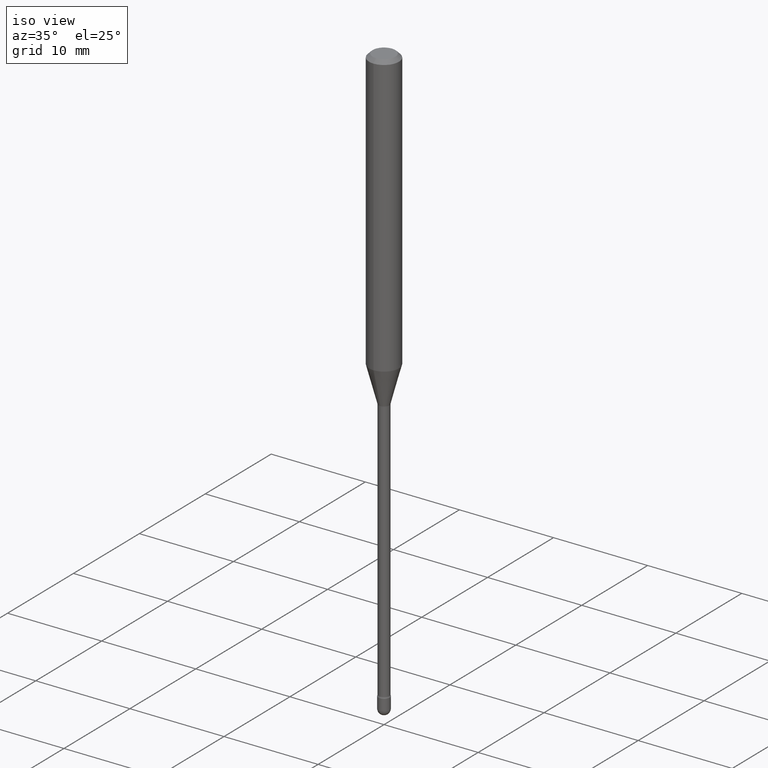
[diagram: clean part render]
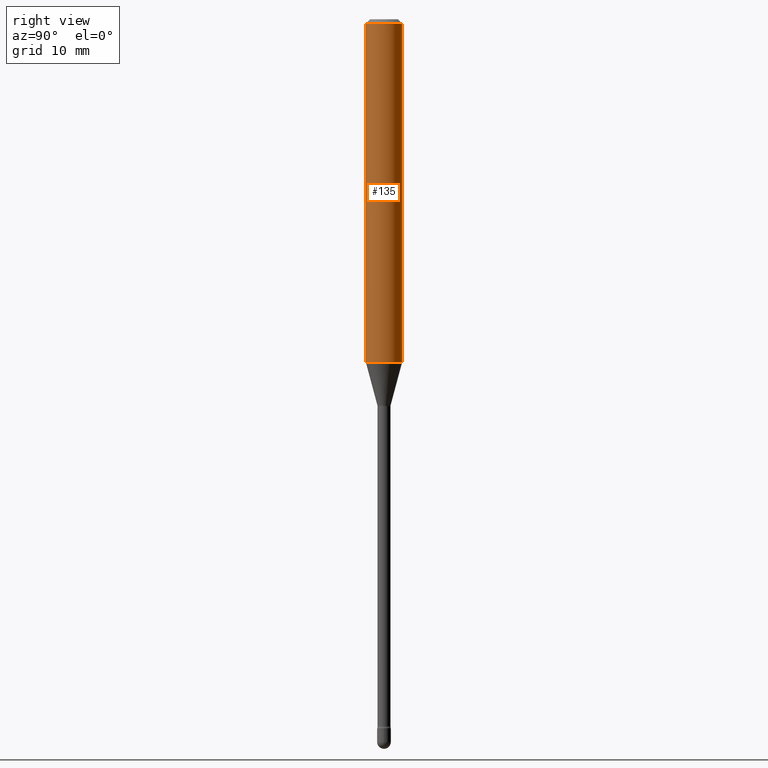
[diagram: tour spotlight — one face highlighted and labeled with its STEP entity id]
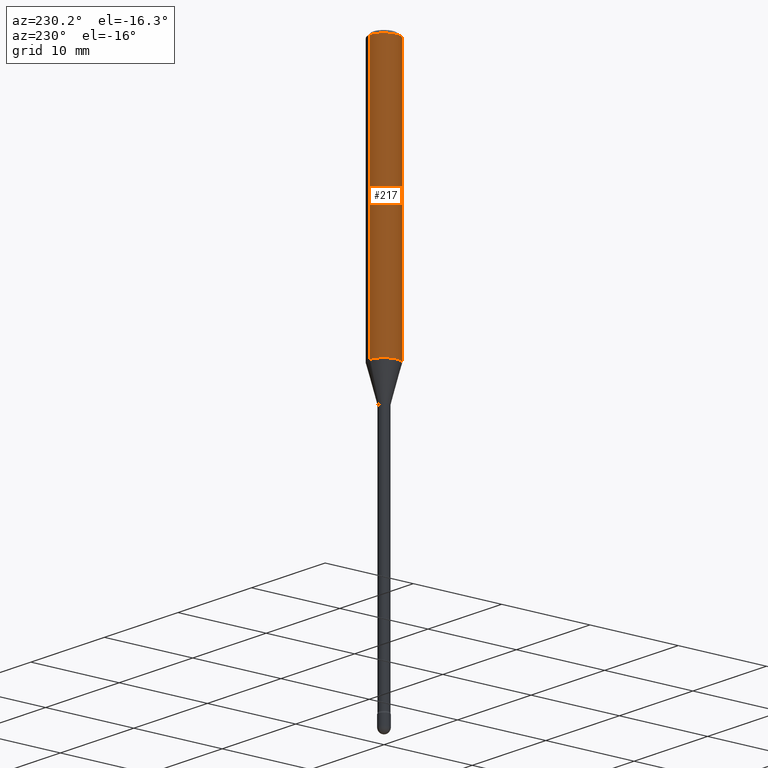
[diagram: tour spotlight — one face highlighted and labeled with its STEP entity id]
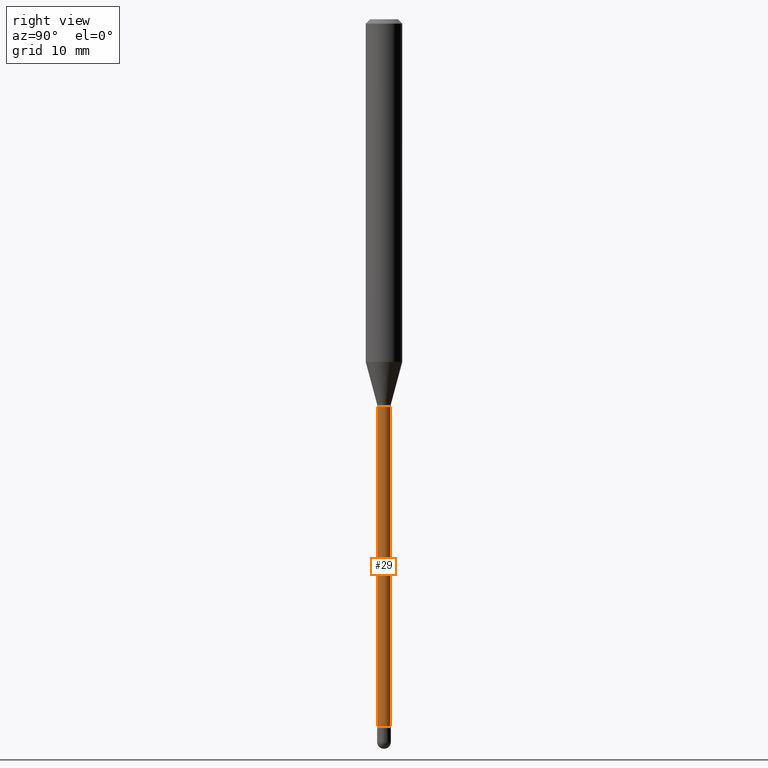
[diagram: tour spotlight — one face highlighted and labeled with its STEP entity id]
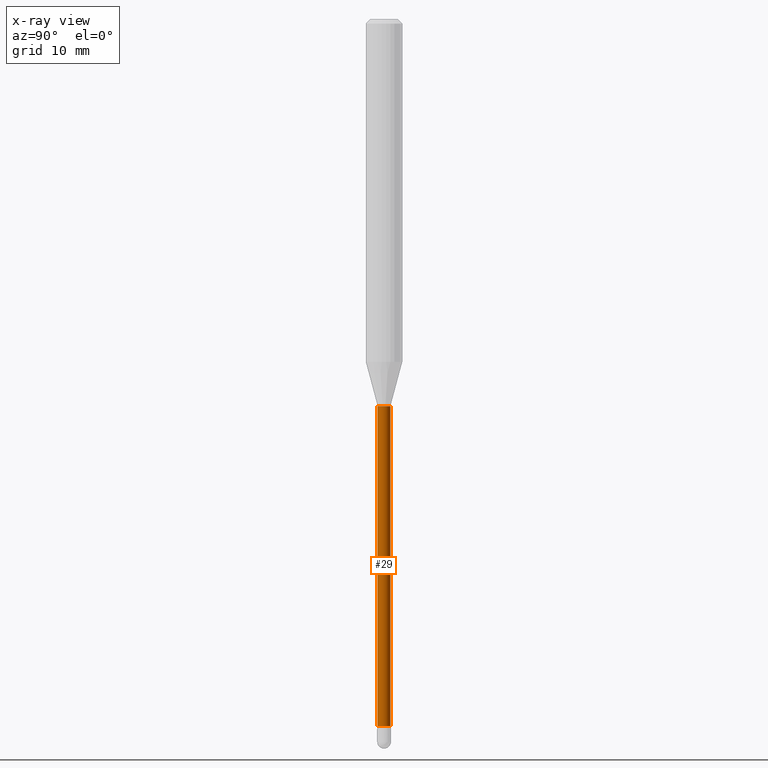
[diagram: x-ray of the same camera — body ghosted, this tour face saturated]
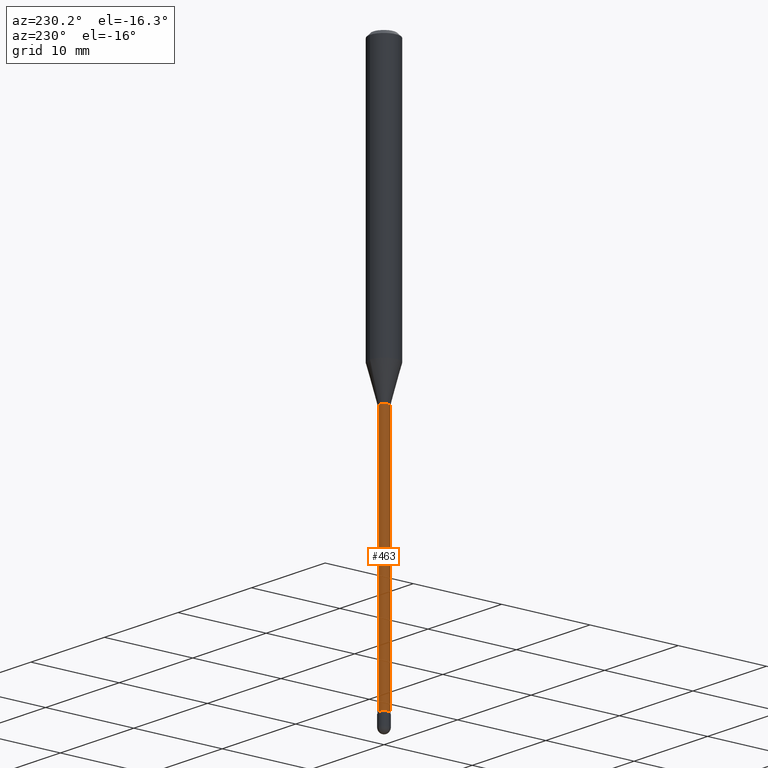
[diagram: tour spotlight — one face highlighted and labeled with its STEP entity id]
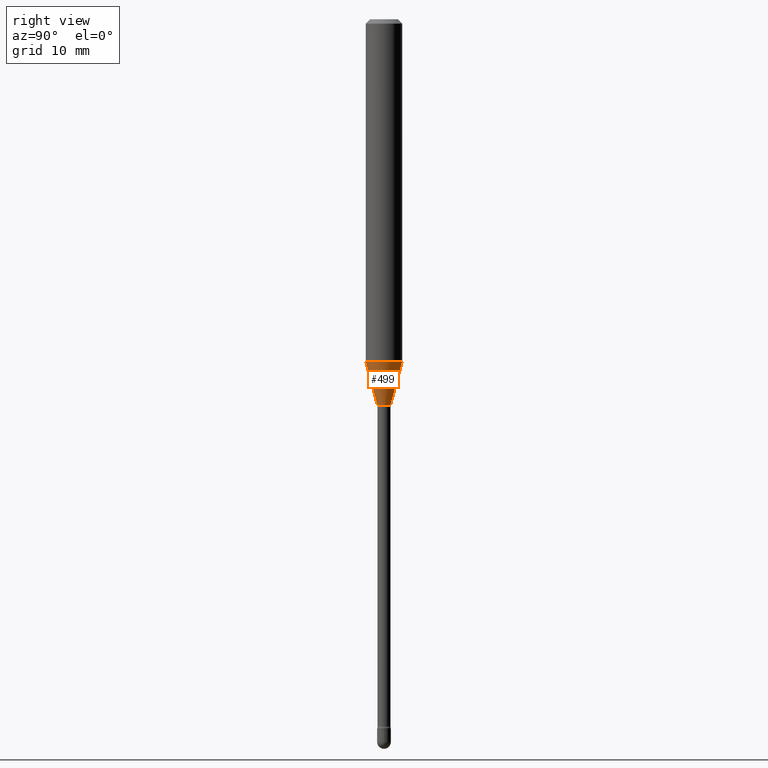
[diagram: tour spotlight — one face highlighted and labeled with its STEP entity id]
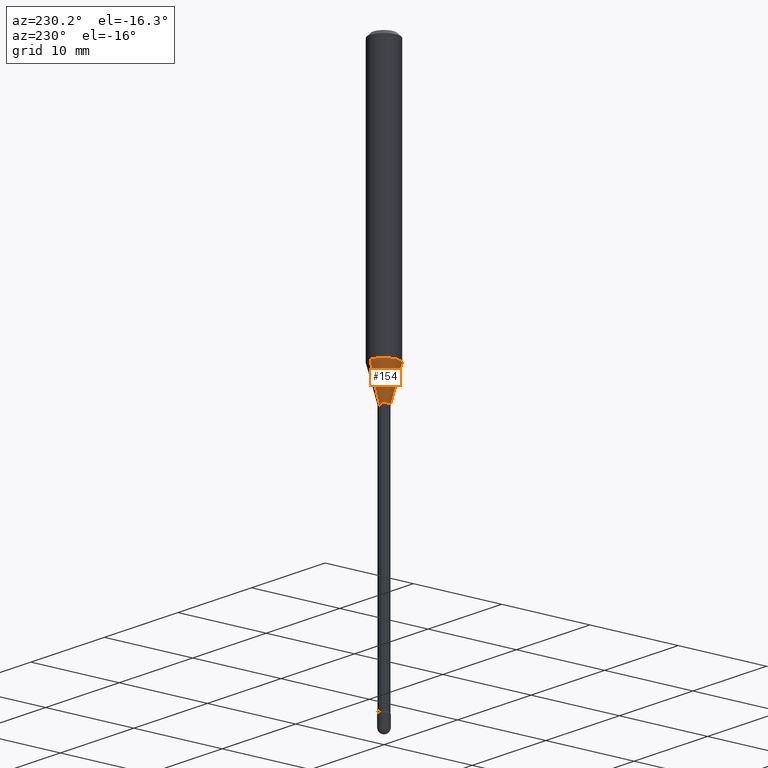
[diagram: tour spotlight — one face highlighted and labeled with its STEP entity id]
A machine part: a face-by-face anatomy tour. The part has 19 B-rep faces; the first image is the clean iso view, then the 6 largest visible faces are spotlighted one at a time (largest first), each with its STEP entity span.

Face 1 — right view, entity #135. In plain terms, the highlighted cylindrical surface (edge-blend (fillet) strip) has radius 1.5875 mm, axis along (-0, 0, 1).
Definition (entity closure, byte-faithful):
#48 = ORIENTED_EDGE ( 'NONE', *, *, #197, .T. ) ;
#65 = VERTEX_POINT ( 'NONE', #503 ) ;
#88 = AXIS2_PLACEMENT_3D ( 'NONE', #128, #388, #483 ) ;
#113 = DIRECTION ( 'NONE',  ( -2.445458212456957479E-29, 3.491496509664856658E-15, 1.000000000000000000 ) ) ;
#121 = CYLINDRICAL_SURFACE ( 'NONE', #88, 0.06250000000000000000 ) ;
#128 = CARTESIAN_POINT ( 'NONE',  ( -1.169113584055446105E-44, 1.669184350826100908E-30, 4.780733988912460139E-16 ) ) ;
#130 = DIRECTION ( 'NONE',  ( -6.982962677686265922E-15, -1.000000000000000000, 3.483106191921935554E-15 ) ) ;
#131 = FACE_OUTER_BOUND ( 'NONE', #528, .T. ) ;
#135 = ADVANCED_FACE ( 'NONE', ( #131 ), #121, .T. ) ;
#161 = EDGE_CURVE ( 'NONE', #416, #497, #410, .T. ) ;
#163 = AXIS2_PLACEMENT_3D ( 'NONE', #339, #297, #565 ) ;
#197 = EDGE_CURVE ( 'NONE', #65, #497, #202, .T. ) ;
#202 = LINE ( 'NONE', #283, #247 ) ;
#213 = DIRECTION ( 'NONE',  ( -2.445458212456957479E-29, 3.491496509664856658E-15, 1.000000000000000000 ) ) ;
#247 = VECTOR ( 'NONE', #113, 39.37007874015748143 ) ;
#252 = LINE ( 'NONE', #341, #376 ) ;
#254 = CARTESIAN_POINT ( 'NONE',  ( -4.364351673553912750E-16, -0.06250000000000005551, -0.01499999999999986587 ) ) ;
#283 = CARTESIAN_POINT ( 'NONE',  ( 4.440892098500625669E-16, 0.06250000000000000000, 2.598548670371925468E-16 ) ) ;
#293 = CARTESIAN_POINT ( 'NONE',  ( -4.364351673553631225E-16, -0.06250000000000412170, -1.174225147374217793 ) ) ;
#297 = DIRECTION ( 'NONE',  ( -2.445458212456957199E-29, 3.491496509664856263E-15, 1.000000000000000000 ) ) ;
#330 = ORIENTED_EDGE ( 'NONE', *, *, #437, .T. ) ;
#339 = CARTESIAN_POINT ( 'NONE',  ( 2.871518529919762182E-29, -4.099803003617783492E-15, -1.174225147374218015 ) ) ;
#341 = CARTESIAN_POINT ( 'NONE',  ( -4.364351673553916201E-16, -0.06250000000000000000, 6.962919307452995797E-16 ) ) ;
#363 = EDGE_CURVE ( 'NONE', #489, #416, #252, .T. ) ;
#376 = VECTOR ( 'NONE', #213, 39.37007874015748143 ) ;
#388 = DIRECTION ( 'NONE',  ( -2.445458212456957199E-29, 3.491496509664856263E-15, 1.000000000000000000 ) ) ;
#410 = CIRCLE ( 'NONE', #492, 0.06250000000000000000 ) ;
#416 = VERTEX_POINT ( 'NONE', #254 ) ;
#437 = EDGE_CURVE ( 'NONE', #489, #65, #518, .T. ) ;
#483 = DIRECTION ( 'NONE',  ( -6.982962677686265922E-15, -1.000000000000000000, 3.491496509664855869E-15 ) ) ;
#489 = VERTEX_POINT ( 'NONE', #293 ) ;
#492 = AXIS2_PLACEMENT_3D ( 'NONE', #539, #560, #130 ) ;
#496 = ORIENTED_EDGE ( 'NONE', *, *, #363, .F. ) ;
#497 = VERTEX_POINT ( 'NONE', #566 ) ;
#503 = CARTESIAN_POINT ( 'NONE',  ( 4.440892098500910152E-16, 0.06249999999999587830, -1.174225147374218237 ) ) ;
#518 = CIRCLE ( 'NONE', #163, 0.06250000000000000000 ) ;
#528 = EDGE_LOOP ( 'NONE', ( #330, #48, #540, #496 ) ) ;
#539 = CARTESIAN_POINT ( 'NONE',  ( 3.668187318685455644E-31, -5.237244764497312646E-17, -0.01500000000000008271 ) ) ;
#540 = ORIENTED_EDGE ( 'NONE', *, *, #161, .F. ) ;
#560 = DIRECTION ( 'NONE',  ( -2.445458212456957199E-29, 3.491496509664856263E-15, 1.000000000000000000 ) ) ;
#565 = DIRECTION ( 'NONE',  ( -6.982962677686265922E-15, -1.000000000000000000, 4.370956789862821150E-15 ) ) ;
#566 = CARTESIAN_POINT ( 'NONE',  ( 4.440892098500914096E-16, 0.06249999999999995143, -0.01500000000000030129 ) ) ;

Face 2 — auxiliary view, entity #217. In plain terms, the highlighted cylindrical surface (edge-blend (fillet) strip) has radius 1.5875 mm, axis along (-0, 0, 1).
Definition (entity closure, byte-faithful):
#12 = ORIENTED_EDGE ( 'NONE', *, *, #89, .T. ) ;
#19 = CYLINDRICAL_SURFACE ( 'NONE', #317, 0.06250000000000000000 ) ;
#21 = CARTESIAN_POINT ( 'NONE',  ( 3.668187318685455644E-31, -5.237244764497312646E-17, -0.01500000000000008271 ) ) ;
#65 = VERTEX_POINT ( 'NONE', #503 ) ;
#73 = CARTESIAN_POINT ( 'NONE',  ( -1.169113584055446105E-44, 1.669184350826100908E-30, 4.780733988912460139E-16 ) ) ;
#77 = ORIENTED_EDGE ( 'NONE', *, *, #363, .T. ) ;
#89 = EDGE_CURVE ( 'NONE', #65, #489, #326, .T. ) ;
#96 = ORIENTED_EDGE ( 'NONE', *, *, #197, .F. ) ;
#105 = DIRECTION ( 'NONE',  ( -6.982962677686265922E-15, -1.000000000000000000, 3.483106191921935554E-15 ) ) ;
#113 = DIRECTION ( 'NONE',  ( -2.445458212456957479E-29, 3.491496509664856658E-15, 1.000000000000000000 ) ) ;
#117 = DIRECTION ( 'NONE',  ( -2.445458212456957199E-29, 3.491496509664856263E-15, 1.000000000000000000 ) ) ;
#155 = CIRCLE ( 'NONE', #464, 0.06250000000000000000 ) ;
#188 = EDGE_CURVE ( 'NONE', #497, #416, #155, .T. ) ;
#197 = EDGE_CURVE ( 'NONE', #65, #497, #202, .T. ) ;
#202 = LINE ( 'NONE', #283, #247 ) ;
#205 = AXIS2_PLACEMENT_3D ( 'NONE', #329, #427, #233 ) ;
#213 = DIRECTION ( 'NONE',  ( -2.445458212456957479E-29, 3.491496509664856658E-15, 1.000000000000000000 ) ) ;
#217 = ADVANCED_FACE ( 'NONE', ( #275 ), #19, .T. ) ;
#233 = DIRECTION ( 'NONE',  ( -6.982962677686265922E-15, -1.000000000000000000, 4.370956789862821150E-15 ) ) ;
#247 = VECTOR ( 'NONE', #113, 39.37007874015748143 ) ;
#252 = LINE ( 'NONE', #341, #376 ) ;
#254 = CARTESIAN_POINT ( 'NONE',  ( -4.364351673553912750E-16, -0.06250000000000005551, -0.01499999999999986587 ) ) ;
#272 = EDGE_LOOP ( 'NONE', ( #96, #12, #77, #452 ) ) ;
#275 = FACE_OUTER_BOUND ( 'NONE', #272, .T. ) ;
#283 = CARTESIAN_POINT ( 'NONE',  ( 4.440892098500625669E-16, 0.06250000000000000000, 2.598548670371925468E-16 ) ) ;
#293 = CARTESIAN_POINT ( 'NONE',  ( -4.364351673553631225E-16, -0.06250000000000412170, -1.174225147374217793 ) ) ;
#317 = AXIS2_PLACEMENT_3D ( 'NONE', #73, #462, #460 ) ;
#326 = CIRCLE ( 'NONE', #205, 0.06250000000000000000 ) ;
#329 = CARTESIAN_POINT ( 'NONE',  ( 2.871518529919762182E-29, -4.099803003617783492E-15, -1.174225147374218015 ) ) ;
#341 = CARTESIAN_POINT ( 'NONE',  ( -4.364351673553916201E-16, -0.06250000000000000000, 6.962919307452995797E-16 ) ) ;
#363 = EDGE_CURVE ( 'NONE', #489, #416, #252, .T. ) ;
#376 = VECTOR ( 'NONE', #213, 39.37007874015748143 ) ;
#416 = VERTEX_POINT ( 'NONE', #254 ) ;
#427 = DIRECTION ( 'NONE',  ( -2.445458212456957199E-29, 3.491496509664856263E-15, 1.000000000000000000 ) ) ;
#452 = ORIENTED_EDGE ( 'NONE', *, *, #188, .F. ) ;
#460 = DIRECTION ( 'NONE',  ( -6.982962677686265922E-15, -1.000000000000000000, 3.491496509664855869E-15 ) ) ;
#462 = DIRECTION ( 'NONE',  ( -2.445458212456957199E-29, 3.491496509664856263E-15, 1.000000000000000000 ) ) ;
#464 = AXIS2_PLACEMENT_3D ( 'NONE', #21, #117, #105 ) ;
#489 = VERTEX_POINT ( 'NONE', #293 ) ;
#497 = VERTEX_POINT ( 'NONE', #566 ) ;
#503 = CARTESIAN_POINT ( 'NONE',  ( 4.440892098500910152E-16, 0.06249999999999587830, -1.174225147374218237 ) ) ;
#566 = CARTESIAN_POINT ( 'NONE',  ( 4.440892098500914096E-16, 0.06249999999999995143, -0.01500000000000030129 ) ) ;

Face 3 — right view, entity #29. An x-ray twin of the same camera follows (body ghosted, this face saturated) — the face is partly hidden behind the body. In plain terms, the highlighted cylindrical surface (edge-blend (fillet) strip) has radius 0.5613 mm, axis along (-0, 0, 1).
Definition (entity closure, byte-faithful):
#15 = VERTEX_POINT ( 'NONE', #210 ) ;
#20 = EDGE_LOOP ( 'NONE', ( #373, #186, #183, #110 ) ) ;
#29 = ADVANCED_FACE ( 'NONE', ( #139 ), #447, .T. ) ;
#41 = DIRECTION ( 'NONE',  ( -6.982962677686266711E-15, -1.000000000000000000, 0.000000000000000000 ) ) ;
#46 = LINE ( 'NONE', #485, #191 ) ;
#47 = CARTESIAN_POINT ( 'NONE',  ( 1.570299446030417360E-16, 0.02209999999999536988, -1.326974787463811145 ) ) ;
#79 = DIRECTION ( 'NONE',  ( -2.445458212456957199E-29, 3.491496509664856263E-15, 1.000000000000000000 ) ) ;
#102 = VERTEX_POINT ( 'NONE', #47 ) ;
#110 = ORIENTED_EDGE ( 'NONE', *, *, #403, .F. ) ;
#127 = EDGE_CURVE ( 'NONE', #15, #255, #212, .T. ) ;
#139 = FACE_OUTER_BOUND ( 'NONE', #20, .T. ) ;
#162 = CARTESIAN_POINT ( 'NONE',  ( 3.245061391726702506E-29, -4.633127838843160731E-15, -1.326974787463811145 ) ) ;
#167 = DIRECTION ( 'NONE',  ( -6.982962677686265922E-15, -1.000000000000000000, 0.000000000000000000 ) ) ;
#183 = ORIENTED_EDGE ( 'NONE', *, *, #258, .F. ) ;
#186 = ORIENTED_EDGE ( 'NONE', *, *, #290, .T. ) ;
#187 = CARTESIAN_POINT ( 'NONE',  ( 5.924543831024158448E-29, -8.458751820827276960E-15, -2.422672283192177645 ) ) ;
#191 = VECTOR ( 'NONE', #557, 39.37007874015748143 ) ;
#204 = LINE ( 'NONE', #372, #237 ) ;
#210 = CARTESIAN_POINT ( 'NONE',  ( -1.543234751768080125E-16, -0.02210000000000856765, -2.422672283192177645 ) ) ;
#212 = CIRCLE ( 'NONE', #445, 0.02210000000000010914 ) ;
#237 = VECTOR ( 'NONE', #550, 39.37007874015748143 ) ;
#255 = VERTEX_POINT ( 'NONE', #553 ) ;
#258 = EDGE_CURVE ( 'NONE', #490, #102, #365, .T. ) ;
#290 = EDGE_CURVE ( 'NONE', #255, #102, #204, .T. ) ;
#308 = AXIS2_PLACEMENT_3D ( 'NONE', #162, #79, #167 ) ;
#318 = DIRECTION ( 'NONE',  ( -6.982962677686265922E-15, -1.000000000000000000, 3.491496509664854291E-15 ) ) ;
#338 = CARTESIAN_POINT ( 'NONE',  ( -1.543234751768340203E-16, -0.02210000000000463330, -1.326974787463811145 ) ) ;
#365 = CIRCLE ( 'NONE', #308, 0.02210000000000000159 ) ;
#372 = CARTESIAN_POINT ( 'NONE',  ( 1.570299446029824728E-16, 0.02210000000000005363, 4.009113260276525511E-16 ) ) ;
#373 = ORIENTED_EDGE ( 'NONE', *, *, #127, .T. ) ;
#401 = CARTESIAN_POINT ( 'NONE',  ( -1.169113584055446105E-44, 1.669184350826100908E-30, 4.780733988912460139E-16 ) ) ;
#403 = EDGE_CURVE ( 'NONE', #15, #490, #46, .T. ) ;
#445 = AXIS2_PLACEMENT_3D ( 'NONE', #187, #476, #41 ) ;
#447 = CYLINDRICAL_SURFACE ( 'NONE', #561, 0.02210000000000005363 ) ;
#476 = DIRECTION ( 'NONE',  ( -2.445458212456957199E-29, 3.491496509664856263E-15, 1.000000000000000000 ) ) ;
#485 = CARTESIAN_POINT ( 'NONE',  ( -1.543234751768668566E-16, -0.02210000000000005363, 5.552354717548395753E-16 ) ) ;
#490 = VERTEX_POINT ( 'NONE', #338 ) ;
#541 = DIRECTION ( 'NONE',  ( -2.445458212456957199E-29, 3.491496509664856263E-15, 1.000000000000000000 ) ) ;
#550 = DIRECTION ( 'NONE',  ( -2.445458212456957479E-29, 3.491496509664856658E-15, 1.000000000000000000 ) ) ;
#553 = CARTESIAN_POINT ( 'NONE',  ( 1.620037437533626044E-16, 0.02209999999999164716, -2.422672283192177645 ) ) ;
#557 = DIRECTION ( 'NONE',  ( -2.445458212456957479E-29, 3.491496509664856658E-15, 1.000000000000000000 ) ) ;
#561 = AXIS2_PLACEMENT_3D ( 'NONE', #401, #541, #318 ) ;

Face 4 — auxiliary view, entity #463. In plain terms, the highlighted cylindrical surface (edge-blend (fillet) strip) has radius 0.5613 mm, axis along (-0, 0, 1).
Definition (entity closure, byte-faithful):
#2 = CARTESIAN_POINT ( 'NONE',  ( -1.169113584055446105E-44, 1.669184350826100908E-30, 4.780733988912460139E-16 ) ) ;
#15 = VERTEX_POINT ( 'NONE', #210 ) ;
#33 = AXIS2_PLACEMENT_3D ( 'NONE', #209, #122, #390 ) ;
#37 = DIRECTION ( 'NONE',  ( -6.982962677686265922E-15, -1.000000000000000000, 3.491496509664854291E-15 ) ) ;
#46 = LINE ( 'NONE', #485, #191 ) ;
#47 = CARTESIAN_POINT ( 'NONE',  ( 1.570299446030417360E-16, 0.02209999999999536988, -1.326974787463811145 ) ) ;
#102 = VERTEX_POINT ( 'NONE', #47 ) ;
#103 = EDGE_LOOP ( 'NONE', ( #261, #342, #168, #262 ) ) ;
#122 = DIRECTION ( 'NONE',  ( -2.445458212456957199E-29, 3.491496509664856263E-15, 1.000000000000000000 ) ) ;
#123 = CIRCLE ( 'NONE', #501, 0.02210000000000000159 ) ;
#168 = ORIENTED_EDGE ( 'NONE', *, *, #403, .T. ) ;
#174 = DIRECTION ( 'NONE',  ( -2.445458212456957199E-29, 3.491496509664856263E-15, 1.000000000000000000 ) ) ;
#191 = VECTOR ( 'NONE', #557, 39.37007874015748143 ) ;
#204 = LINE ( 'NONE', #372, #237 ) ;
#206 = CIRCLE ( 'NONE', #33, 0.02210000000000010914 ) ;
#209 = CARTESIAN_POINT ( 'NONE',  ( 5.924543831024158448E-29, -8.458751820827276960E-15, -2.422672283192177645 ) ) ;
#210 = CARTESIAN_POINT ( 'NONE',  ( -1.543234751768080125E-16, -0.02210000000000856765, -2.422672283192177645 ) ) ;
#237 = VECTOR ( 'NONE', #550, 39.37007874015748143 ) ;
#255 = VERTEX_POINT ( 'NONE', #553 ) ;
#261 = ORIENTED_EDGE ( 'NONE', *, *, #290, .F. ) ;
#262 = ORIENTED_EDGE ( 'NONE', *, *, #440, .F. ) ;
#269 = AXIS2_PLACEMENT_3D ( 'NONE', #2, #174, #37 ) ;
#290 = EDGE_CURVE ( 'NONE', #255, #102, #204, .T. ) ;
#338 = CARTESIAN_POINT ( 'NONE',  ( -1.543234751768340203E-16, -0.02210000000000463330, -1.326974787463811145 ) ) ;
#342 = ORIENTED_EDGE ( 'NONE', *, *, #469, .T. ) ;
#372 = CARTESIAN_POINT ( 'NONE',  ( 1.570299446029824728E-16, 0.02210000000000005363, 4.009113260276525511E-16 ) ) ;
#384 = DIRECTION ( 'NONE',  ( -6.982962677686265922E-15, -1.000000000000000000, 0.000000000000000000 ) ) ;
#390 = DIRECTION ( 'NONE',  ( -6.982962677686266711E-15, -1.000000000000000000, 0.000000000000000000 ) ) ;
#395 = CYLINDRICAL_SURFACE ( 'NONE', #269, 0.02210000000000005363 ) ;
#403 = EDGE_CURVE ( 'NONE', #15, #490, #46, .T. ) ;
#430 = DIRECTION ( 'NONE',  ( -2.445458212456957199E-29, 3.491496509664856263E-15, 1.000000000000000000 ) ) ;
#436 = CARTESIAN_POINT ( 'NONE',  ( 3.245061391726702506E-29, -4.633127838843160731E-15, -1.326974787463811145 ) ) ;
#440 = EDGE_CURVE ( 'NONE', #102, #490, #123, .T. ) ;
#463 = ADVANCED_FACE ( 'NONE', ( #516 ), #395, .T. ) ;
#469 = EDGE_CURVE ( 'NONE', #255, #15, #206, .T. ) ;
#485 = CARTESIAN_POINT ( 'NONE',  ( -1.543234751768668566E-16, -0.02210000000000005363, 5.552354717548395753E-16 ) ) ;
#490 = VERTEX_POINT ( 'NONE', #338 ) ;
#501 = AXIS2_PLACEMENT_3D ( 'NONE', #436, #430, #384 ) ;
#516 = FACE_OUTER_BOUND ( 'NONE', #103, .T. ) ;
#550 = DIRECTION ( 'NONE',  ( -2.445458212456957479E-29, 3.491496509664856658E-15, 1.000000000000000000 ) ) ;
#553 = CARTESIAN_POINT ( 'NONE',  ( 1.620037437533626044E-16, 0.02209999999999164716, -2.422672283192177645 ) ) ;
#557 = DIRECTION ( 'NONE',  ( -2.445458212456957479E-29, 3.491496509664856658E-15, 1.000000000000000000 ) ) ;

Face 5 — right view, entity #499. In plain terms, the highlighted conical surface has half-angle 15 deg.
Definition (entity closure, byte-faithful):
#23 = CARTESIAN_POINT ( 'NONE',  ( 3.023754139721027843E-16, 0.02261111260565936906, -1.323092501787273223 ) ) ;
#40 = DIRECTION ( 'NONE',  ( -6.982962677686265922E-15, -1.000000000000000000, 0.000000000000000000 ) ) ;
#49 = EDGE_CURVE ( 'NONE', #512, #265, #173, .T. ) ;
#65 = VERTEX_POINT ( 'NONE', #503 ) ;
#80 = VECTOR ( 'NONE', #542, 39.37007874015749564 ) ;
#116 = EDGE_LOOP ( 'NONE', ( #370, #533, #223, #280 ) ) ;
#125 = CONICAL_SURFACE ( 'NONE', #377, 0.02261111260566398690, 0.2617993877991501295 ) ;
#133 = DIRECTION ( 'NONE',  ( -2.445458212456957199E-29, 3.491496509664856263E-15, 1.000000000000000000 ) ) ;
#157 = CARTESIAN_POINT ( 'NONE',  ( -1.578925554262807327E-16, -0.02261111260566860820, -1.323092501787273223 ) ) ;
#159 = LINE ( 'NONE', #196, #448 ) ;
#163 = AXIS2_PLACEMENT_3D ( 'NONE', #339, #297, #565 ) ;
#173 = CIRCLE ( 'NONE', #180, 0.02261111260566398690 ) ;
#178 = FACE_OUTER_BOUND ( 'NONE', #116, .T. ) ;
#180 = AXIS2_PLACEMENT_3D ( 'NONE', #382, #332, #40 ) ;
#196 = CARTESIAN_POINT ( 'NONE',  ( 1.606616180941141096E-16, 0.02261111260565936906, -1.323092501787273223 ) ) ;
#219 = EDGE_CURVE ( 'NONE', #512, #489, #331, .T. ) ;
#223 = ORIENTED_EDGE ( 'NONE', *, *, #437, .F. ) ;
#265 = VERTEX_POINT ( 'NONE', #23 ) ;
#266 = CARTESIAN_POINT ( 'NONE',  ( -1.578925554262807327E-16, -0.02261111260566860820, -1.323092501787273223 ) ) ;
#271 = EDGE_CURVE ( 'NONE', #265, #65, #159, .T. ) ;
#280 = ORIENTED_EDGE ( 'NONE', *, *, #219, .F. ) ;
#293 = CARTESIAN_POINT ( 'NONE',  ( -4.364351673553631225E-16, -0.06250000000000412170, -1.174225147374217793 ) ) ;
#297 = DIRECTION ( 'NONE',  ( -2.445458212456957199E-29, 3.491496509664856263E-15, 1.000000000000000000 ) ) ;
#322 = DIRECTION ( 'NONE',  ( 1.839019923739599526E-15, 0.2588190451025248473, 0.9659258262890673130 ) ) ;
#331 = LINE ( 'NONE', #157, #80 ) ;
#332 = DIRECTION ( 'NONE',  ( -2.445458212456957199E-29, 3.491496509664856263E-15, 1.000000000000000000 ) ) ;
#339 = CARTESIAN_POINT ( 'NONE',  ( 2.871518529919762182E-29, -4.099803003617783492E-15, -1.174225147374218015 ) ) ;
#370 = ORIENTED_EDGE ( 'NONE', *, *, #49, .T. ) ;
#377 = AXIS2_PLACEMENT_3D ( 'NONE', #524, #133, #444 ) ;
#382 = CARTESIAN_POINT ( 'NONE',  ( 3.235567424335908757E-29, -4.619572851954007400E-15, -1.323092501787273223 ) ) ;
#437 = EDGE_CURVE ( 'NONE', #489, #65, #518, .T. ) ;
#444 = DIRECTION ( 'NONE',  ( -6.982962677686265922E-15, -1.000000000000000000, 0.000000000000000000 ) ) ;
#448 = VECTOR ( 'NONE', #322, 39.37007874015747433 ) ;
#489 = VERTEX_POINT ( 'NONE', #293 ) ;
#499 = ADVANCED_FACE ( 'NONE', ( #178 ), #125, .T. ) ;
#503 = CARTESIAN_POINT ( 'NONE',  ( 4.440892098500910152E-16, 0.06249999999999587830, -1.174225147374218237 ) ) ;
#512 = VERTEX_POINT ( 'NONE', #266 ) ;
#518 = CIRCLE ( 'NONE', #163, 0.06250000000000000000 ) ;
#524 = CARTESIAN_POINT ( 'NONE',  ( 3.235567424335908757E-29, -4.619572851954007400E-15, -1.323092501787273223 ) ) ;
#533 = ORIENTED_EDGE ( 'NONE', *, *, #271, .T. ) ;
#542 = DIRECTION ( 'NONE',  ( -1.807323732225328562E-15, -0.2588190451025179639, 0.9659258262890689783 ) ) ;
#565 = DIRECTION ( 'NONE',  ( -6.982962677686265922E-15, -1.000000000000000000, 4.370956789862821150E-15 ) ) ;

Face 6 — auxiliary view, entity #154. In plain terms, the highlighted conical surface has half-angle 15 deg.
Definition (entity closure, byte-faithful):
#3 = CONICAL_SURFACE ( 'NONE', #62, 0.02261111260566398690, 0.2617993877991501295 ) ;
#23 = CARTESIAN_POINT ( 'NONE',  ( 3.023754139721027843E-16, 0.02261111260565936906, -1.323092501787273223 ) ) ;
#62 = AXIS2_PLACEMENT_3D ( 'NONE', #231, #314, #270 ) ;
#65 = VERTEX_POINT ( 'NONE', #503 ) ;
#80 = VECTOR ( 'NONE', #542, 39.37007874015749564 ) ;
#86 = CARTESIAN_POINT ( 'NONE',  ( 3.235567424335908757E-29, -4.619572851954007400E-15, -1.323092501787273223 ) ) ;
#89 = EDGE_CURVE ( 'NONE', #65, #489, #326, .T. ) ;
#108 = ORIENTED_EDGE ( 'NONE', *, *, #302, .T. ) ;
#154 = ADVANCED_FACE ( 'NONE', ( #453 ), #3, .T. ) ;
#157 = CARTESIAN_POINT ( 'NONE',  ( -1.578925554262807327E-16, -0.02261111260566860820, -1.323092501787273223 ) ) ;
#159 = LINE ( 'NONE', #196, #448 ) ;
#169 = DIRECTION ( 'NONE',  ( -2.445458212456957199E-29, 3.491496509664856263E-15, 1.000000000000000000 ) ) ;
#179 = DIRECTION ( 'NONE',  ( -6.982962677686265922E-15, -1.000000000000000000, 0.000000000000000000 ) ) ;
#196 = CARTESIAN_POINT ( 'NONE',  ( 1.606616180941141096E-16, 0.02261111260565936906, -1.323092501787273223 ) ) ;
#205 = AXIS2_PLACEMENT_3D ( 'NONE', #329, #427, #233 ) ;
#215 = CIRCLE ( 'NONE', #482, 0.02261111260566398690 ) ;
#219 = EDGE_CURVE ( 'NONE', #512, #489, #331, .T. ) ;
#231 = CARTESIAN_POINT ( 'NONE',  ( 3.235567424335908757E-29, -4.619572851954007400E-15, -1.323092501787273223 ) ) ;
#233 = DIRECTION ( 'NONE',  ( -6.982962677686265922E-15, -1.000000000000000000, 4.370956789862821150E-15 ) ) ;
#249 = ORIENTED_EDGE ( 'NONE', *, *, #271, .F. ) ;
#265 = VERTEX_POINT ( 'NONE', #23 ) ;
#266 = CARTESIAN_POINT ( 'NONE',  ( -1.578925554262807327E-16, -0.02261111260566860820, -1.323092501787273223 ) ) ;
#270 = DIRECTION ( 'NONE',  ( -6.982962677686265922E-15, -1.000000000000000000, 0.000000000000000000 ) ) ;
#271 = EDGE_CURVE ( 'NONE', #265, #65, #159, .T. ) ;
#287 = EDGE_LOOP ( 'NONE', ( #249, #108, #315, #505 ) ) ;
#293 = CARTESIAN_POINT ( 'NONE',  ( -4.364351673553631225E-16, -0.06250000000000412170, -1.174225147374217793 ) ) ;
#302 = EDGE_CURVE ( 'NONE', #265, #512, #215, .T. ) ;
#314 = DIRECTION ( 'NONE',  ( -2.445458212456957199E-29, 3.491496509664856263E-15, 1.000000000000000000 ) ) ;
#315 = ORIENTED_EDGE ( 'NONE', *, *, #219, .T. ) ;
#322 = DIRECTION ( 'NONE',  ( 1.839019923739599526E-15, 0.2588190451025248473, 0.9659258262890673130 ) ) ;
#326 = CIRCLE ( 'NONE', #205, 0.06250000000000000000 ) ;
#329 = CARTESIAN_POINT ( 'NONE',  ( 2.871518529919762182E-29, -4.099803003617783492E-15, -1.174225147374218015 ) ) ;
#331 = LINE ( 'NONE', #157, #80 ) ;
#427 = DIRECTION ( 'NONE',  ( -2.445458212456957199E-29, 3.491496509664856263E-15, 1.000000000000000000 ) ) ;
#448 = VECTOR ( 'NONE', #322, 39.37007874015747433 ) ;
#453 = FACE_OUTER_BOUND ( 'NONE', #287, .T. ) ;
#482 = AXIS2_PLACEMENT_3D ( 'NONE', #86, #169, #179 ) ;
#489 = VERTEX_POINT ( 'NONE', #293 ) ;
#503 = CARTESIAN_POINT ( 'NONE',  ( 4.440892098500910152E-16, 0.06249999999999587830, -1.174225147374218237 ) ) ;
#505 = ORIENTED_EDGE ( 'NONE', *, *, #89, .F. ) ;
#512 = VERTEX_POINT ( 'NONE', #266 ) ;
#542 = DIRECTION ( 'NONE',  ( -1.807323732225328562E-15, -0.2588190451025179639, 0.9659258262890689783 ) ) ;